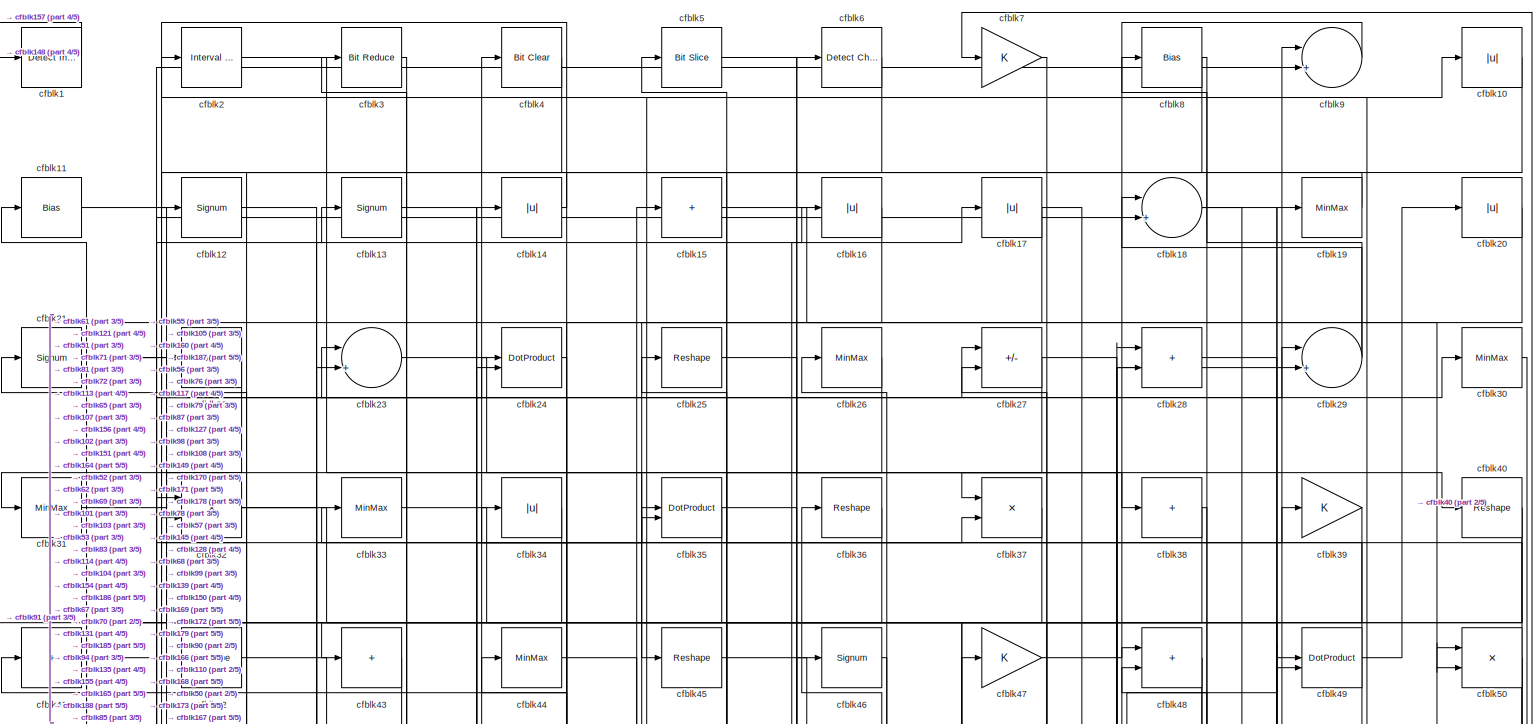
[diagram: root canvas - part 1/5, full width, top band]
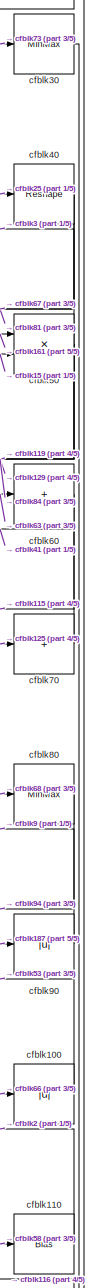
[diagram: root canvas - part 2/5, middle right region]
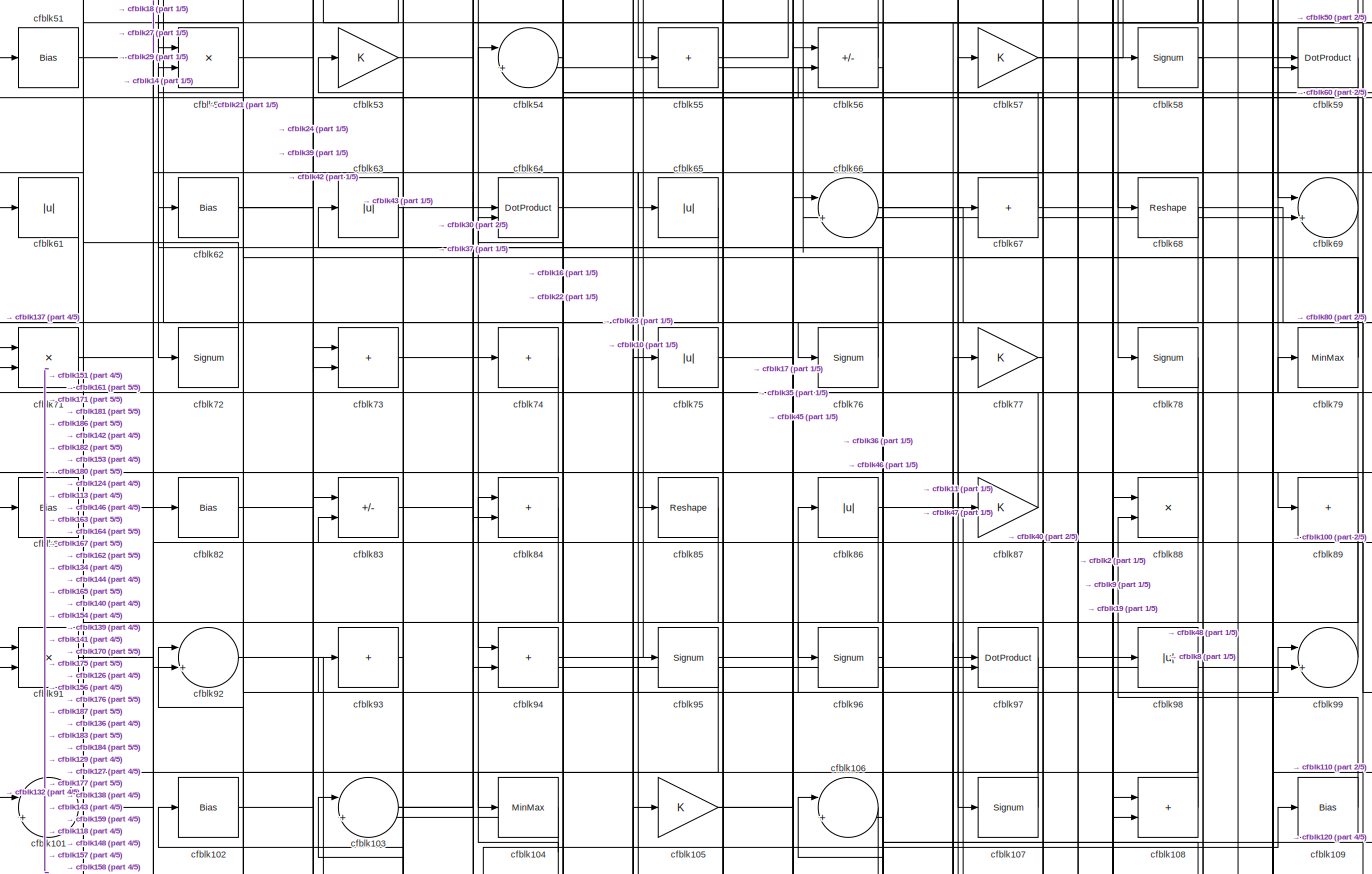
[diagram: root canvas - part 3/5, full width, middle band]
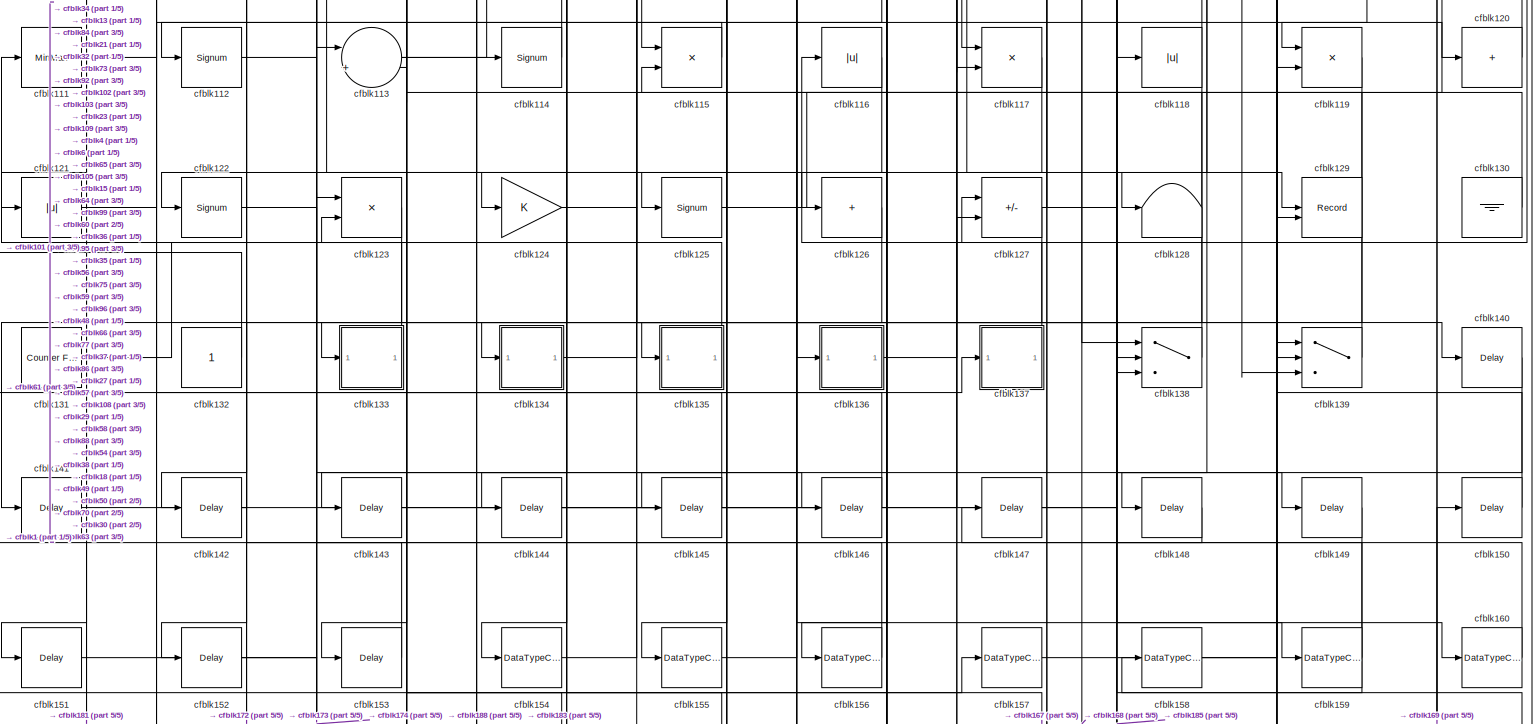
[diagram: root canvas - part 4/5, full width, bottom band]
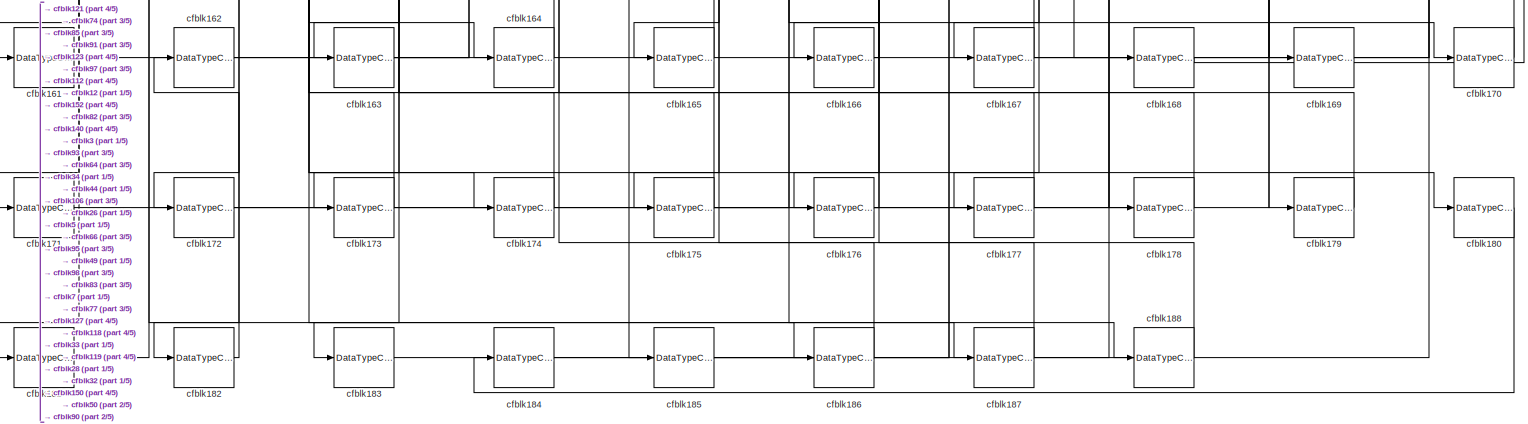
[diagram: root canvas - part 5/5, full width, bottom band]
MODEL slx_eb91713a3fee
KIND model
CONFIG AbsTol = auto
CONFIG EnableMultiTasking = off
CONFIG FixedStep = auto
CONFIG MaxStep = auto
CONFIG MinStep = auto
CONFIG RelTol = 1e-3
CONFIG SampleTimeConstraint = Unconstrained
CONFIG SolverName = VariableStepAuto
CONFIG StartTime = 0.0
CONFIG StopTime = 10.0
BLOCK [Reference] cfblk1  REF=simulink/Logic and Bit
Operations/Detect
Increase
  LibrarySourceBlock = hdlsllib/Logic and Bit\nOperations/Detect\nIncrease
  SourceBlock = simulink/Logic and Bit\nOperations/Detect\nIncrease
  SourceType = Detect Increase
BLOCK [Abs] cfblk10
  SaturateOnIntegerOverflow = off
BLOCK [Abs] cfblk100
  SaturateOnIntegerOverflow = off
BLOCK [Sum] cfblk101
  Inputs = |++
BLOCK [Bias] cfblk102
  Bias = 0.0
  SaturateOnIntegerOverflow = off
BLOCK [Sum] cfblk103
  Inputs = |++
BLOCK [MinMax] cfblk104
BLOCK [Gain] cfblk105
BLOCK [Sum] cfblk106
  Inputs = |++
BLOCK [Signum] cfblk107
BLOCK [Sum] cfblk108
  IconShape = rectangular
BLOCK [Bias] cfblk109
  Bias = 0.0
  SaturateOnIntegerOverflow = off
BLOCK [Bias] cfblk11
  Bias = 0.0
  SaturateOnIntegerOverflow = off
BLOCK [Bias] cfblk110
  Bias = 0.0
  SaturateOnIntegerOverflow = off
BLOCK [MinMax] cfblk111
BLOCK [Signum] cfblk112
BLOCK [Sum] cfblk113
  Inputs = |++
BLOCK [Signum] cfblk114
BLOCK [Product] cfblk115
  Inputs = */
  RndMeth = Zero
  SaturateOnIntegerOverflow = on
BLOCK [Abs] cfblk116
  SaturateOnIntegerOverflow = off
BLOCK [Product] cfblk117
  Inputs = */
  RndMeth = Zero
  SaturateOnIntegerOverflow = on
BLOCK [Abs] cfblk118
  SaturateOnIntegerOverflow = off
BLOCK [Product] cfblk119
  Inputs = */
  RndMeth = Zero
  SaturateOnIntegerOverflow = on
BLOCK [Signum] cfblk12
BLOCK [Sum] cfblk120
  IconShape = rectangular
  Inputs = +
BLOCK [Abs] cfblk121
  SaturateOnIntegerOverflow = off
BLOCK [Signum] cfblk122
BLOCK [Product] cfblk123
  Inputs = */
  RndMeth = Zero
  SaturateOnIntegerOverflow = on
BLOCK [Gain] cfblk124
BLOCK [Signum] cfblk125
BLOCK [Sum] cfblk126
  IconShape = rectangular
  Inputs = +
BLOCK [Sum] cfblk127
  IconShape = rectangular
  Inputs = +-
BLOCK [Terminator] cfblk128
BLOCK [Record] cfblk129
  CompatibilityTag = XY
  FileSettingsInternal = {"entries":[{"content":{"excelSettings":{"content":{},"type":"Streamout.ExcelSettings"}},"type":"Streamout.FileSettingStorage","uuid":""}],"packageUris":["http:\/\/schema.mathworks.com\/mf0\/streamout_blocks\/R2020a"],"version":"1.0"}
  Layout = [1 1]
  SignalsInternal = {"entries":[{"content":{"signals":[{"content":{"blockPath":[],"dimensions":[1],"domain":"","lineColor":"#a2142f","plots":[1],"port":1,"signalID":5289,"signalName":"XY Graph:1"},"type":"RecordBlkView.Signal","uuid":""},{"content":{"blockPath":[],"dimensions":[1],"domain":"","lineColor":"#139fff","plots":[1],"port":2,"signalID":5292,"signalName":"XY Graph:2"},"type":"RecordBlkView.Signal","uuid":""}...<+146ch>
  VisualizationBindings = {"xyplotplugin":{"info":[{"series":[{"bindingParametersList":[{"parameter":"X-Axis","signalID":5289,"signalName":"XY Graph:1"},{"parameter":"Y-Axis","signalID":5292,"signalName":"XY Graph:2"}],"seriesID":37715}],"subplotID":1}]}}
  st = -1
BLOCK [Signum] cfblk13
BLOCK [Ground] cfblk130
BLOCK [Reference] cfblk131  REF=hdlsllib/Sources/Counter
Free-Running
  SourceBlock = hdlsllib/Sources/Counter\nFree-Running
  SourceType = Counter Free-Running
BLOCK [Constant] cfblk132
  SampleTime = -1
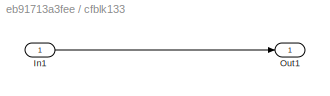
BLOCK [SubSystem] cfblk133
  LibrarySourceBlock = hdlsllib/Ports &\nSubsystems/Subsystem
BLOCK [Inport] cfblk133/In1
BLOCK [Outport] cfblk133/Out1
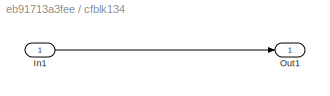
BLOCK [SubSystem] cfblk134
  LibrarySourceBlock = hdlsllib/Ports &\nSubsystems/Subsystem
BLOCK [Inport] cfblk134/In1
BLOCK [Outport] cfblk134/Out1
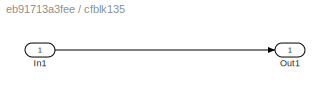
BLOCK [SubSystem] cfblk135
  LibrarySourceBlock = hdlsllib/Ports &\nSubsystems/Subsystem
BLOCK [Inport] cfblk135/In1
BLOCK [Outport] cfblk135/Out1
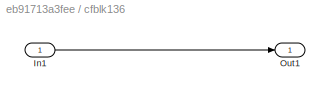
BLOCK [SubSystem] cfblk136
  LibrarySourceBlock = hdlsllib/Ports &\nSubsystems/Subsystem
BLOCK [Inport] cfblk136/In1
BLOCK [Outport] cfblk136/Out1
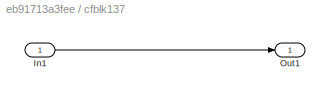
BLOCK [SubSystem] cfblk137
  LibrarySourceBlock = hdlsllib/Ports &\nSubsystems/Subsystem
BLOCK [Inport] cfblk137/In1
BLOCK [Outport] cfblk137/Out1
BLOCK [Switch] cfblk138
  InputSameDT = off
  SaturateOnIntegerOverflow = off
BLOCK [Switch] cfblk139
  InputSameDT = off
  SaturateOnIntegerOverflow = off
BLOCK [Abs] cfblk14
  SaturateOnIntegerOverflow = off
BLOCK [Delay] cfblk140
  InputPortMap = u0
  SampleTime = 1
BLOCK [Delay] cfblk141
  InputPortMap = u0
  SampleTime = 1
BLOCK [Delay] cfblk142
  InputPortMap = u0
  SampleTime = 1
BLOCK [Delay] cfblk143
  InputPortMap = u0
  SampleTime = 1
BLOCK [Delay] cfblk144
  InputPortMap = u0
  SampleTime = 1
BLOCK [Delay] cfblk145
  InputPortMap = u0
  SampleTime = 1
BLOCK [Delay] cfblk146
  InputPortMap = u0
  SampleTime = 1
BLOCK [Delay] cfblk147
  InputPortMap = u0
  SampleTime = 1
BLOCK [Delay] cfblk148
  InputPortMap = u0
  SampleTime = 1
BLOCK [Delay] cfblk149
  InputPortMap = u0
  SampleTime = 1
BLOCK [Sum] cfblk15
  IconShape = rectangular
  Inputs = +
BLOCK [Delay] cfblk150
  InputPortMap = u0
  SampleTime = 1
BLOCK [Delay] cfblk151
  InputPortMap = u0
  SampleTime = 1
BLOCK [Delay] cfblk152
  InputPortMap = u0
  SampleTime = 1
BLOCK [Delay] cfblk153
  InputPortMap = u0
  SampleTime = 1
BLOCK [DataTypeConversion] cfblk154
  OutDataTypeStr = uint8
  RndMeth = Floor
  SaturateOnIntegerOverflow = off
BLOCK [DataTypeConversion] cfblk155
  OutDataTypeStr = uint8
  RndMeth = Floor
  SaturateOnIntegerOverflow = off
BLOCK [DataTypeConversion] cfblk156
  OutDataTypeStr = uint8
  RndMeth = Floor
  SaturateOnIntegerOverflow = off
BLOCK [DataTypeConversion] cfblk157
  OutDataTypeStr = uint8
  RndMeth = Floor
  SaturateOnIntegerOverflow = off
BLOCK [DataTypeConversion] cfblk158
  OutDataTypeStr = uint8
  RndMeth = Floor
  SaturateOnIntegerOverflow = off
BLOCK [DataTypeConversion] cfblk159
  OutDataTypeStr = uint8
  RndMeth = Floor
  SaturateOnIntegerOverflow = off
BLOCK [Abs] cfblk16
  SaturateOnIntegerOverflow = off
BLOCK [DataTypeConversion] cfblk160
  OutDataTypeStr = uint8
  RndMeth = Floor
  SaturateOnIntegerOverflow = off
BLOCK [DataTypeConversion] cfblk161
  OutDataTypeStr = uint8
  RndMeth = Floor
  SaturateOnIntegerOverflow = off
BLOCK [DataTypeConversion] cfblk162
  OutDataTypeStr = uint8
  RndMeth = Floor
  SaturateOnIntegerOverflow = off
BLOCK [DataTypeConversion] cfblk163
  OutDataTypeStr = uint8
  RndMeth = Floor
  SaturateOnIntegerOverflow = off
BLOCK [DataTypeConversion] cfblk164
  OutDataTypeStr = uint8
  RndMeth = Floor
  SaturateOnIntegerOverflow = off
BLOCK [DataTypeConversion] cfblk165
  OutDataTypeStr = uint8
  RndMeth = Floor
  SaturateOnIntegerOverflow = off
BLOCK [DataTypeConversion] cfblk166
  OutDataTypeStr = uint8
  RndMeth = Floor
  SaturateOnIntegerOverflow = off
BLOCK [DataTypeConversion] cfblk167
  RndMeth = Floor
  SaturateOnIntegerOverflow = off
BLOCK [DataTypeConversion] cfblk168
  OutDataTypeStr = uint8
  RndMeth = Floor
  SaturateOnIntegerOverflow = off
BLOCK [DataTypeConversion] cfblk169
  OutDataTypeStr = uint8
  RndMeth = Floor
  SaturateOnIntegerOverflow = off
BLOCK [Abs] cfblk17
  SaturateOnIntegerOverflow = off
BLOCK [DataTypeConversion] cfblk170
  OutDataTypeStr = uint8
  RndMeth = Floor
  SaturateOnIntegerOverflow = off
BLOCK [DataTypeConversion] cfblk171
  OutDataTypeStr = uint8
  RndMeth = Floor
  SaturateOnIntegerOverflow = off
BLOCK [DataTypeConversion] cfblk172
  OutDataTypeStr = uint8
  RndMeth = Floor
  SaturateOnIntegerOverflow = off
BLOCK [DataTypeConversion] cfblk173
  OutDataTypeStr = uint8
  RndMeth = Floor
  SaturateOnIntegerOverflow = off
BLOCK [DataTypeConversion] cfblk174
  OutDataTypeStr = uint8
  RndMeth = Floor
  SaturateOnIntegerOverflow = off
BLOCK [DataTypeConversion] cfblk175
  RndMeth = Floor
  SaturateOnIntegerOverflow = off
BLOCK [DataTypeConversion] cfblk176
  OutDataTypeStr = uint8
  RndMeth = Floor
  SaturateOnIntegerOverflow = off
BLOCK [DataTypeConversion] cfblk177
  OutDataTypeStr = uint8
  RndMeth = Floor
  SaturateOnIntegerOverflow = off
BLOCK [DataTypeConversion] cfblk178
  OutDataTypeStr = uint8
  RndMeth = Floor
  SaturateOnIntegerOverflow = off
BLOCK [DataTypeConversion] cfblk179
  OutDataTypeStr = uint8
  RndMeth = Floor
  SaturateOnIntegerOverflow = off
BLOCK [Sum] cfblk18
  Inputs = |++
BLOCK [DataTypeConversion] cfblk180
  OutDataTypeStr = uint8
  RndMeth = Floor
  SaturateOnIntegerOverflow = off
BLOCK [DataTypeConversion] cfblk181
  OutDataTypeStr = uint8
  RndMeth = Floor
  SaturateOnIntegerOverflow = off
BLOCK [DataTypeConversion] cfblk182
  OutDataTypeStr = uint8
  RndMeth = Floor
  SaturateOnIntegerOverflow = off
BLOCK [DataTypeConversion] cfblk183
  OutDataTypeStr = uint8
  RndMeth = Floor
  SaturateOnIntegerOverflow = off
BLOCK [DataTypeConversion] cfblk184
  OutDataTypeStr = uint8
  RndMeth = Floor
  SaturateOnIntegerOverflow = off
BLOCK [DataTypeConversion] cfblk185
  OutDataTypeStr = uint8
  RndMeth = Floor
  SaturateOnIntegerOverflow = off
BLOCK [DataTypeConversion] cfblk186
  OutDataTypeStr = uint8
  RndMeth = Floor
  SaturateOnIntegerOverflow = off
BLOCK [DataTypeConversion] cfblk187
  RndMeth = Floor
  SaturateOnIntegerOverflow = off
BLOCK [DataTypeConversion] cfblk188
  OutDataTypeStr = uint8
  RndMeth = Floor
  SaturateOnIntegerOverflow = off
BLOCK [MinMax] cfblk19
BLOCK [Reference] cfblk2  REF=hdlsllib/Logic and Bit
Operations/Interval Test
  SourceBlock = hdlsllib/Logic and Bit\nOperations/Interval Test
  SourceType = Interval Test
BLOCK [Abs] cfblk20
  SaturateOnIntegerOverflow = off
BLOCK [Signum] cfblk21
BLOCK [Bias] cfblk22
  Bias = 0.0
  SaturateOnIntegerOverflow = off
BLOCK [Sum] cfblk23
  Inputs = |++
BLOCK [DotProduct] cfblk24
  OutDataTypeStr = Inherit: Inherit via internal rule
BLOCK [Reshape] cfblk25
BLOCK [MinMax] cfblk26
BLOCK [Sum] cfblk27
  IconShape = rectangular
  Inputs = +-
BLOCK [Sum] cfblk28
  IconShape = rectangular
BLOCK [Sum] cfblk29
  Inputs = |++
BLOCK [Reference] cfblk3  REF=hdlsllib/Logic and Bit
Operations/Bit Reduce
  SourceBlock = hdlsllib/Logic and Bit\nOperations/Bit Reduce
  SourceType = Bit Reduce
BLOCK [MinMax] cfblk30
BLOCK [MinMax] cfblk31
BLOCK [Product] cfblk32
  Inputs = */
  RndMeth = Zero
  SaturateOnIntegerOverflow = on
BLOCK [MinMax] cfblk33
BLOCK [Abs] cfblk34
  SaturateOnIntegerOverflow = off
BLOCK [DotProduct] cfblk35
  OutDataTypeStr = Inherit: Inherit via internal rule
BLOCK [Reshape] cfblk36
BLOCK [Product] cfblk37
  Inputs = */
  RndMeth = Zero
  SaturateOnIntegerOverflow = on
BLOCK [Sum] cfblk38
  IconShape = rectangular
  Inputs = +
BLOCK [Gain] cfblk39
BLOCK [Reference] cfblk4  REF=simulink/Logic and Bit
Operations/Bit Clear
  LibrarySourceBlock = hdlsllib/Logic and Bit\nOperations/Bit Clear
  SourceBlock = simulink/Logic and Bit\nOperations/Bit Clear
  SourceType = Bit Clear
BLOCK [Reshape] cfblk40
BLOCK [Sum] cfblk41
  IconShape = rectangular
  Inputs = +
BLOCK [Reshape] cfblk42
BLOCK [Sum] cfblk43
  IconShape = rectangular
  Inputs = +
BLOCK [MinMax] cfblk44
BLOCK [Reshape] cfblk45
BLOCK [Signum] cfblk46
BLOCK [Gain] cfblk47
BLOCK [Sum] cfblk48
  IconShape = rectangular
BLOCK [DotProduct] cfblk49
  OutDataTypeStr = Inherit: Inherit via internal rule
BLOCK [Reference] cfblk5  REF=hdlsllib/Logic and Bit
Operations/Bit Slice
  SourceBlock = hdlsllib/Logic and Bit\nOperations/Bit Slice
  SourceType = Bit Slice
BLOCK [Product] cfblk50
  Inputs = */
  RndMeth = Zero
  SaturateOnIntegerOverflow = on
BLOCK [Bias] cfblk51
  Bias = 0.0
  SaturateOnIntegerOverflow = off
BLOCK [Product] cfblk52
  Inputs = */
  RndMeth = Zero
  SaturateOnIntegerOverflow = on
BLOCK [Gain] cfblk53
BLOCK [Sum] cfblk54
  Inputs = |++
BLOCK [Sum] cfblk55
  IconShape = rectangular
  Inputs = +
BLOCK [Sum] cfblk56
  IconShape = rectangular
  Inputs = +-
BLOCK [Gain] cfblk57
BLOCK [Signum] cfblk58
BLOCK [DotProduct] cfblk59
  OutDataTypeStr = Inherit: Inherit via internal rule
BLOCK [Reference] cfblk6  REF=simulink/Logic and Bit
Operations/Detect
Change
  LibrarySourceBlock = hdlsllib/Logic and Bit\nOperations/Detect\nChange
  SourceBlock = simulink/Logic and Bit\nOperations/Detect\nChange
  SourceType = Detect Change
BLOCK [Sum] cfblk60
  IconShape = rectangular
  Inputs = +
BLOCK [Abs] cfblk61
  SaturateOnIntegerOverflow = off
BLOCK [Bias] cfblk62
  Bias = 0.0
  SaturateOnIntegerOverflow = off
BLOCK [Abs] cfblk63
  SaturateOnIntegerOverflow = off
BLOCK [DotProduct] cfblk64
  OutDataTypeStr = Inherit: Inherit via internal rule
BLOCK [Abs] cfblk65
  SaturateOnIntegerOverflow = off
BLOCK [Sum] cfblk66
  Inputs = |++
BLOCK [Sum] cfblk67
  IconShape = rectangular
  Inputs = +
BLOCK [Reshape] cfblk68
BLOCK [Sum] cfblk69
  Inputs = |++
BLOCK [Gain] cfblk7
BLOCK [Sum] cfblk70
  IconShape = rectangular
  Inputs = +
BLOCK [Product] cfblk71
  Inputs = */
  RndMeth = Zero
  SaturateOnIntegerOverflow = on
BLOCK [Signum] cfblk72
BLOCK [Sum] cfblk73
  IconShape = rectangular
BLOCK [Sum] cfblk74
  IconShape = rectangular
  Inputs = +
BLOCK [Abs] cfblk75
  SaturateOnIntegerOverflow = off
BLOCK [Signum] cfblk76
BLOCK [Gain] cfblk77
BLOCK [Signum] cfblk78
BLOCK [MinMax] cfblk79
BLOCK [Bias] cfblk8
  Bias = 0.0
  SaturateOnIntegerOverflow = off
BLOCK [MinMax] cfblk80
BLOCK [Bias] cfblk81
  Bias = 0.0
  SaturateOnIntegerOverflow = off
BLOCK [Bias] cfblk82
  Bias = 0.0
  SaturateOnIntegerOverflow = off
BLOCK [Sum] cfblk83
  IconShape = rectangular
  Inputs = +-
BLOCK [Sum] cfblk84
  IconShape = rectangular
BLOCK [Reshape] cfblk85
BLOCK [Abs] cfblk86
  SaturateOnIntegerOverflow = off
BLOCK [Gain] cfblk87
BLOCK [Product] cfblk88
  Inputs = */
  RndMeth = Zero
  SaturateOnIntegerOverflow = on
BLOCK [Sum] cfblk89
  IconShape = rectangular
  Inputs = +
BLOCK [Sum] cfblk9
  Inputs = |++
BLOCK [Abs] cfblk90
  SaturateOnIntegerOverflow = off
BLOCK [Product] cfblk91
  Inputs = */
  RndMeth = Zero
  SaturateOnIntegerOverflow = on
BLOCK [Sum] cfblk92
  Inputs = |++
BLOCK [Sum] cfblk93
  IconShape = rectangular
  Inputs = +
BLOCK [Sum] cfblk94
  IconShape = rectangular
BLOCK [Signum] cfblk95
BLOCK [Signum] cfblk96
BLOCK [DotProduct] cfblk97
  OutDataTypeStr = Inherit: Inherit via internal rule
BLOCK [Abs] cfblk98
  SaturateOnIntegerOverflow = off
BLOCK [Sum] cfblk99
  Inputs = |++
LINE cfblk100:1 -> cfblk53:1
LINE cfblk101:1 -> cfblk27:1
LINE cfblk102:1 -> cfblk24:1
NET cfblk103:1 -> cfblk14:1, cfblk37:2, cfblk99:2
LINE cfblk104:1 -> cfblk103:2
NET cfblk105:1 -> cfblk46:1, cfblk79:1
LINE cfblk106:1 -> cfblk175:1
LINE cfblk107:1 -> cfblk21:1
LINE cfblk108:1 -> cfblk86:1
LINE cfblk109:1 -> cfblk88:2
LINE cfblk10:1 -> cfblk52:1
LINE cfblk110:1 -> cfblk2:1
LINE cfblk111:1 -> cfblk120:1
LINE cfblk112:1 -> cfblk188:1
NET cfblk113:1 -> cfblk109:1, cfblk125:1
LINE cfblk114:1 -> cfblk4:1
LINE cfblk115:1 -> cfblk112:1
LINE cfblk116:1 -> cfblk153:1
LINE cfblk117:1 -> cfblk122:1
NET cfblk118:1 -> cfblk143:1, cfblk54:2
LINE cfblk119:1 -> cfblk152:1
LINE cfblk11:1 -> cfblk87:1
LINE cfblk120:1 -> cfblk63:1
NET cfblk121:1 -> cfblk13:1, cfblk181:1
LINE cfblk122:1 -> cfblk146:1
LINE cfblk123:1 -> cfblk172:1
NET cfblk124:1 -> cfblk105:1, cfblk138:2
LINE cfblk125:1 -> cfblk70:1
LINE cfblk126:1 -> cfblk133:1
NET cfblk127:1 -> cfblk141:1, cfblk168:1, cfblk27:2, cfblk29:2, cfblk58:1
LINE cfblk12:1 -> cfblk164:1
LINE cfblk130:1 -> cfblk115:2
LINE cfblk131:1 -> cfblk15:1
LINE cfblk132:1 -> cfblk101:1
LINE cfblk133/In1:1 -> cfblk133/Out1:1
LINE cfblk133:1 -> cfblk111:1
LINE cfblk134/In1:1 -> cfblk134/Out1:1
LINE cfblk134:1 -> cfblk99:1
LINE cfblk135/In1:1 -> cfblk135/Out1:1
LINE cfblk135:1 -> cfblk23:1
LINE cfblk136/In1:1 -> cfblk136/Out1:1
LINE cfblk136:1 -> cfblk77:1
LINE cfblk137/In1:1 -> cfblk137/Out1:1
LINE cfblk137:1 -> cfblk127:1
LINE cfblk138:1 -> cfblk102:1
LINE cfblk139:1 -> cfblk95:1
LINE cfblk13:1 -> cfblk114:1
LINE cfblk140:1 -> cfblk183:1
LINE cfblk141:1 -> cfblk56:1
LINE cfblk142:1 -> cfblk92:1
LINE cfblk143:1 -> cfblk88:1
LINE cfblk144:1 -> cfblk127:2
LINE cfblk145:1 -> cfblk32:1
LINE cfblk146:1 -> cfblk103:1
LINE cfblk147:1 -> cfblk159:1
LINE cfblk148:1 -> cfblk1:1
LINE cfblk149:1 -> cfblk158:1
LINE cfblk14:1 -> cfblk72:1
LINE cfblk150:1 -> cfblk49:1
LINE cfblk151:1 -> cfblk23:2
LINE cfblk152:1 -> cfblk174:1
LINE cfblk153:1 -> cfblk73:1
LINE cfblk154:1 -> cfblk75:1
LINE cfblk155:1 -> cfblk6:1
LINE cfblk156:1 -> cfblk32:2
LINE cfblk157:1 -> cfblk59:1
LINE cfblk158:1 -> cfblk59:2
LINE cfblk159:1 -> cfblk108:1
LINE cfblk15:1 -> cfblk50:2
LINE cfblk160:1 -> cfblk147:1
LINE cfblk161:1 -> cfblk50:1
LINE cfblk162:1 -> cfblk74:1
LINE cfblk163:1 -> cfblk64:1
LINE cfblk164:1 -> cfblk93:1
LINE cfblk165:1 -> cfblk64:2
LINE cfblk166:1 -> cfblk26:1
NET cfblk167:1 -> cfblk119:2, cfblk83:2
LINE cfblk168:1 -> cfblk7:1
LINE cfblk169:1 -> cfblk150:1
LINE cfblk16:1 -> cfblk94:1
LINE cfblk170:1 -> cfblk28:1
LINE cfblk171:1 -> cfblk28:2
LINE cfblk172:1 -> cfblk49:2
LINE cfblk173:1 -> cfblk123:1
LINE cfblk174:1 -> cfblk123:2
NET cfblk175:1 -> cfblk66:1, cfblk83:1
LINE cfblk176:1 -> cfblk106:1
LINE cfblk177:1 -> cfblk106:2
LINE cfblk178:1 -> cfblk34:1
LINE cfblk179:1 -> cfblk33:1
NET cfblk17:1 -> cfblk61:1, cfblk98:1
LINE cfblk180:1 -> cfblk184:1
LINE cfblk181:1 -> cfblk82:1
LINE cfblk182:1 -> cfblk162:1
LINE cfblk183:1 -> cfblk97:1
LINE cfblk184:1 -> cfblk97:2
LINE cfblk185:1 -> cfblk118:1
LINE cfblk186:1 -> cfblk44:1
NET cfblk187:1 -> cfblk66:2, cfblk90:1
LINE cfblk188:1 -> cfblk5:1
NET cfblk18:1 -> cfblk139:1, cfblk139:3
LINE cfblk19:1 -> cfblk12:1
LINE cfblk1:1 -> cfblk157:1
LINE cfblk20:1 -> cfblk45:1
NET cfblk21:1 -> cfblk113:1, cfblk65:1
LINE cfblk22:1 -> cfblk31:1
LINE cfblk23:1 -> cfblk55:1
LINE cfblk24:1 -> cfblk104:1
LINE cfblk25:1 -> cfblk40:1
LINE cfblk26:1 -> cfblk165:1
NET cfblk27:1 -> cfblk149:1, cfblk37:1
LINE cfblk28:1 -> cfblk169:1
NET cfblk29:1 -> cfblk18:1, cfblk8:1
LINE cfblk2:1 -> cfblk108:2
LINE cfblk30:1 -> cfblk116:1
LINE cfblk31:1 -> cfblk38:1
NET cfblk32:1 -> cfblk139:2, cfblk179:1
LINE cfblk33:1 -> cfblk178:1
LINE cfblk34:1 -> cfblk121:1
NET cfblk35:1 -> cfblk160:1, cfblk91:2
LINE cfblk36:1 -> cfblk135:1
LINE cfblk37:1 -> cfblk117:1
NET cfblk38:1 -> cfblk128:1, cfblk155:1
LINE cfblk39:1 -> cfblk43:1
LINE cfblk3:1 -> cfblk173:1
NET cfblk40:1 -> cfblk67:1, cfblk81:1
LINE cfblk41:1 -> cfblk35:1
LINE cfblk42:1 -> cfblk69:1
LINE cfblk43:1 -> cfblk101:2
LINE cfblk44:1 -> cfblk185:1
LINE cfblk45:1 -> cfblk69:2
LINE cfblk46:1 -> cfblk76:1
LINE cfblk47:1 -> cfblk48:1
NET cfblk48:1 -> cfblk117:2, cfblk145:1
NET cfblk49:1 -> cfblk166:1, cfblk20:1, cfblk25:1
LINE cfblk4:1 -> cfblk42:1
NET cfblk50:1 -> cfblk119:1, cfblk129:2, cfblk3:1, cfblk84:2
LINE cfblk51:1 -> cfblk29:1
LINE cfblk52:1 -> cfblk39:1
LINE cfblk53:1 -> cfblk24:2
LINE cfblk54:1 -> cfblk144:1
LINE cfblk55:1 -> cfblk17:1
LINE cfblk56:1 -> cfblk36:1
NET cfblk57:1 -> cfblk138:1, cfblk19:1
NET cfblk58:1 -> cfblk110:1, cfblk148:1
LINE cfblk59:1 -> cfblk156:1
LINE cfblk5:1 -> cfblk187:1
LINE cfblk60:1 -> cfblk115:1
LINE cfblk61:1 -> cfblk137:1
NET cfblk62:1 -> cfblk16:1, cfblk56:2
LINE cfblk63:1 -> cfblk60:1
LINE cfblk64:1 -> cfblk140:1
LINE cfblk65:1 -> cfblk134:1
NET cfblk66:1 -> cfblk100:1, cfblk138:3
NET cfblk67:1 -> cfblk22:1, cfblk89:1
NET cfblk68:1 -> cfblk71:2, cfblk80:1
NET cfblk69:1 -> cfblk51:1, cfblk73:2
LINE cfblk6:1 -> cfblk154:1
LINE cfblk70:1 -> cfblk41:1
LINE cfblk71:1 -> cfblk9:2
LINE cfblk72:1 -> cfblk11:1
LINE cfblk73:1 -> cfblk30:1
LINE cfblk74:1 -> cfblk161:1
LINE cfblk75:1 -> cfblk136:1
LINE cfblk76:1 -> cfblk62:1
LINE cfblk77:1 -> cfblk177:1
LINE cfblk78:1 -> cfblk91:1
NET cfblk79:1 -> cfblk47:1, cfblk52:2
LINE cfblk7:1 -> cfblk167:1
LINE cfblk80:1 -> cfblk94:2
NET cfblk81:1 -> cfblk18:2, cfblk92:2
LINE cfblk82:1 -> cfblk180:1
LINE cfblk83:1 -> cfblk35:2
LINE cfblk84:1 -> cfblk142:1
LINE cfblk85:1 -> cfblk171:1
NET cfblk86:1 -> cfblk113:2, cfblk129:1
LINE cfblk87:1 -> cfblk71:1
NET cfblk88:1 -> cfblk57:1, cfblk96:1
NET cfblk89:1 -> cfblk107:1, cfblk54:1
NET cfblk8:1 -> cfblk68:1, cfblk85:1
LINE cfblk90:1 -> cfblk9:1
NET cfblk91:1 -> cfblk186:1, cfblk84:1
LINE cfblk92:1 -> cfblk124:1
LINE cfblk93:1 -> cfblk163:1
LINE cfblk94:1 -> cfblk10:1
NET cfblk95:1 -> cfblk151:1, cfblk170:1
LINE cfblk96:1 -> cfblk126:1
LINE cfblk97:1 -> cfblk182:1
LINE cfblk98:1 -> cfblk176:1
LINE cfblk99:1 -> cfblk48:2
LINE cfblk9:1 -> cfblk78:1
note: NET lines group one-source signal fan-out (src -> all destinations, sorted); 1:1 wires keep LINE
